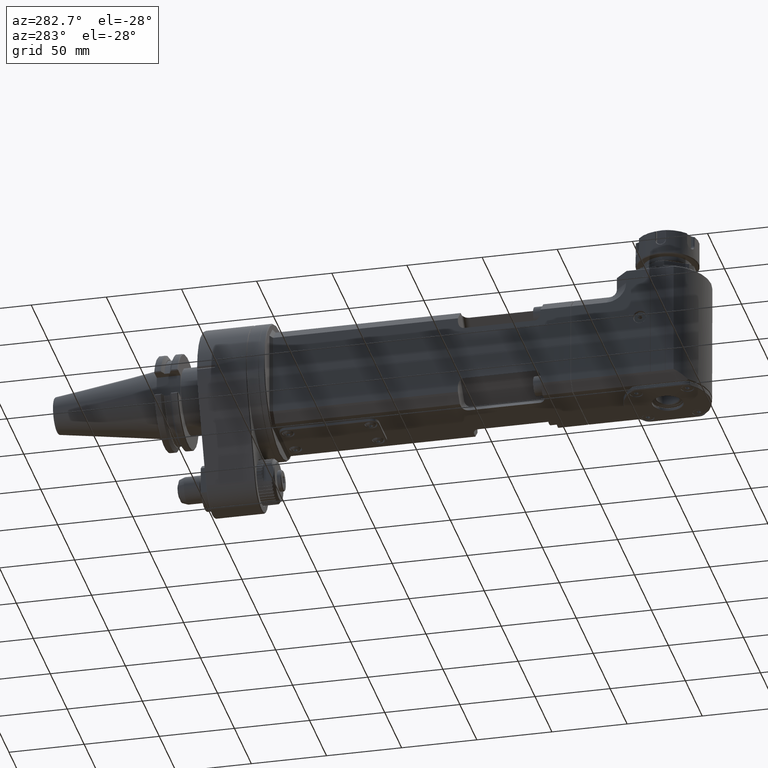
[diagram: clean part render]
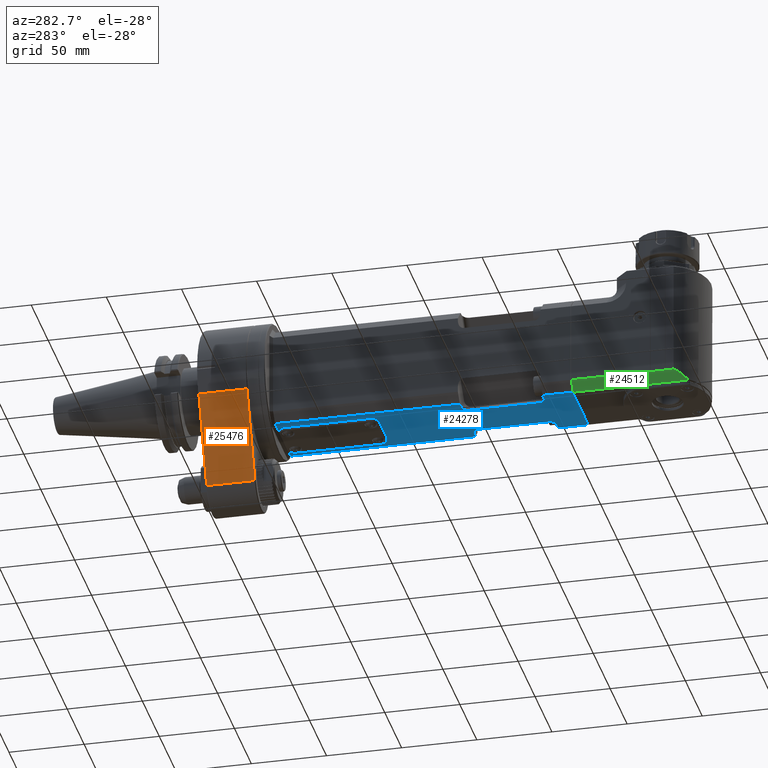
[diagram: same view with three faces highlighted in distinct colors, each labeled with its STEP entity id]
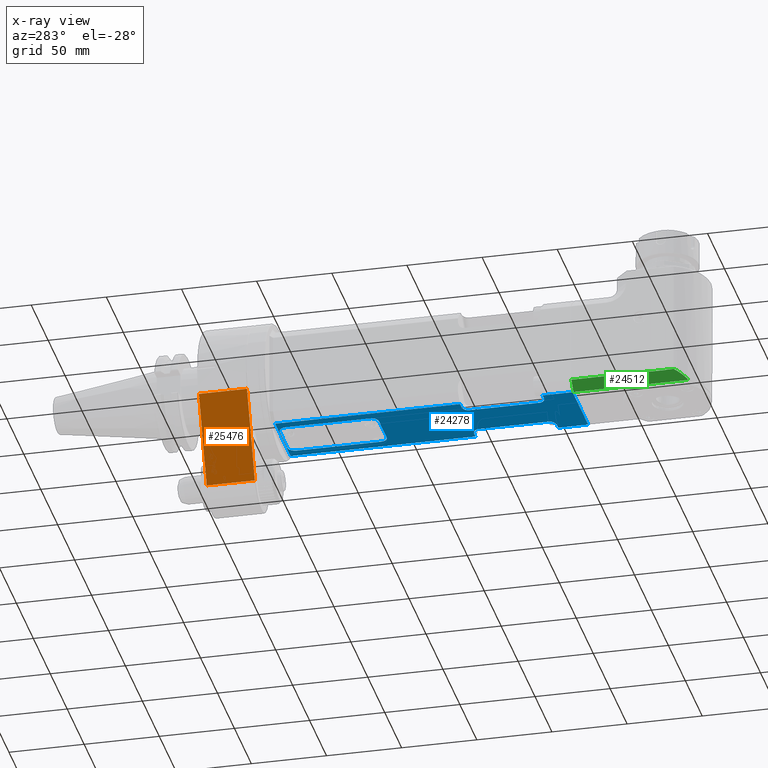
[diagram: x-ray of the same camera — body ghosted, the three highlighted faces saturated]
A machine part, auxiliary view with three faces highlighted in distinct colors.
The next image is the same camera in x-ray (body ghosted, the three faces saturated) — at least one of them is partly hidden behind the body in this view.
Their STEP definitions:

[orange] entity #25476 — the highlighted planar face has unit normal (-0.9231, 0, -0.3846).
#976=PLANE('',#27900);
#3185=FACE_OUTER_BOUND('',#4815,.T.);
#4815=EDGE_LOOP('',(#22831,#22832,#22833,#22834));
#7987=LINE('',#49036,#10020);
#7997=LINE('',#49058,#10030);
#7998=LINE('',#49060,#10031);
#7999=LINE('',#49061,#10032);
#10020=VECTOR('',#34144,10.);
#10030=VECTOR('',#34170,10.);
#10031=VECTOR('',#34173,31.99969563317);
#10032=VECTOR('',#34174,32.00018741808);
#12364=VERTEX_POINT('',#47543);
#12580=VERTEX_POINT('',#49031);
#12581=VERTEX_POINT('',#49035);
#12585=VERTEX_POINT('',#49054);
#16076=EDGE_CURVE('',#12581,#12580,#7987,.T.);
#16088=EDGE_CURVE('',#12364,#12585,#7997,.T.);
#16089=EDGE_CURVE('',#12585,#12581,#7998,.T.);
#16090=EDGE_CURVE('',#12580,#12364,#7999,.T.);
#22831=ORIENTED_EDGE('',*,*,#16088,.T.);
#22832=ORIENTED_EDGE('',*,*,#16089,.T.);
#22833=ORIENTED_EDGE('',*,*,#16076,.T.);
#22834=ORIENTED_EDGE('',*,*,#16090,.T.);
#25476=ADVANCED_FACE('',(#3185),#976,.T.);
#27900=AXIS2_PLACEMENT_3D('',#49059,#34171,#34172);
#34144=DIRECTION('',(-0.384615384615406,3.39139971075705E-14,0.923076923076914));
#34170=DIRECTION('',(0.384615384615406,3.39139971075705E-14,-0.923076923076914));
#34171=DIRECTION('center_axis',(-0.923076923076914,0.,-0.384615384615406));
#34172=DIRECTION('ref_axis',(-0.384615384615406,0.,0.923076923076914));
#34173=DIRECTION('',(-5.231420650501E-13,-1.,-2.184939694437E-13));
#34174=DIRECTION('',(5.357904936583E-13,1.,1.99061822447E-13));
#47543=CARTESIAN_POINT('',(-41.5383202524667,32.5003101427439,-17.3076334733757));
#49031=CARTESIAN_POINT('',(-41.5384616394059,0.500113797660992,-17.3076923845356));
#49035=CARTESIAN_POINT('',(-18.4615386000156,0.500150759076893,-72.6923076780329));
#49036=CARTESIAN_POINT('',(-24.2307692307706,0.500000000001736,-58.8461538461574));
#49054=CARTESIAN_POINT('',(-18.4615384204592,32.499849710546,-72.692307603216));
#49058=CARTESIAN_POINT('',(-24.2307692307709,32.4999999999983,-58.8461538461569));
#49059=CARTESIAN_POINT('Origin',(-18.46153846154,0.,-72.69230769231));
#49060=CARTESIAN_POINT('',(-18.46153848688,32.49985434569,-72.69230763089));
#49061=CARTESIAN_POINT('',(-41.53846152592,0.5001217498938,-17.30769233725));

[blue] entity #24278 — the highlighted planar face has unit normal (-0, 0, -1).
#429=PLANE('',#25902);
#1385=FACE_BOUND('',#3481,.T.);
#1987=FACE_OUTER_BOUND('',#3480,.T.);
#3480=EDGE_LOOP('',(#16800,#16801,#16802,#16803,#16804,#16805,#16806,#16807,
#16808,#16809,#16810,#16811,#16812,#16813,#16814,#16815));
#3481=EDGE_LOOP('',(#16816,#16817,#16818,#16819,#16820,#16821,#16822,#16823));
#5142=ELLIPSE('',#25903,5.65685424949238,4.);
#5143=ELLIPSE('',#25904,5.65685424949238,4.);
#5144=ELLIPSE('',#25905,5.65685424949238,4.);
#5145=ELLIPSE('',#25906,5.65685424949238,4.);
#5319=CIRCLE('',#25907,5.);
#5320=CIRCLE('',#25908,5.);
#5321=CIRCLE('',#25909,5.);
#5322=CIRCLE('',#25910,5.);
#6300=LINE('',#35321,#8333);
#6304=LINE('',#35329,#8337);
#6388=LINE('',#35864,#8421);
#6389=LINE('',#35867,#8422);
#6390=LINE('',#35871,#8423);
#6391=LINE('',#35875,#8424);
#6392=LINE('',#35877,#8425);
#6393=LINE('',#35879,#8426);
#6394=LINE('',#35881,#8427);
#6395=LINE('',#35883,#8428);
#6396=LINE('',#35887,#8429);
#6397=LINE('',#35890,#8430);
#6398=LINE('',#35893,#8431);
#6399=LINE('',#35897,#8432);
#6400=LINE('',#35901,#8433);
#6401=LINE('',#35905,#8434);
#8333=VECTOR('',#28341,46.);
#8337=VECTOR('',#28349,123.);
#8421=VECTOR('',#28565,123.);
#8422=VECTOR('',#28568,3.899494936612);
#8423=VECTOR('',#28571,47.);
#8424=VECTOR('',#28574,3.899494936612);
#8425=VECTOR('',#28575,20.);
#8426=VECTOR('',#28576,46.);
#8427=VECTOR('',#28577,20.);
#8428=VECTOR('',#28578,3.899494936612);
#8429=VECTOR('',#28581,47.);
#8430=VECTOR('',#28584,3.899494936612);
#8431=VECTOR('',#28585,56.);
#8432=VECTOR('',#28588,23.);
#8433=VECTOR('',#28591,56.);
#8434=VECTOR('',#28594,23.);
#10369=VERTEX_POINT('',#35316);
#10370=VERTEX_POINT('',#35320);
#10372=VERTEX_POINT('',#35328);
#10557=VERTEX_POINT('',#35862);
#10558=VERTEX_POINT('',#35866);
#10559=VERTEX_POINT('',#35868);
#10560=VERTEX_POINT('',#35870);
#10561=VERTEX_POINT('',#35872);
#10562=VERTEX_POINT('',#35874);
#10563=VERTEX_POINT('',#35876);
#10564=VERTEX_POINT('',#35878);
#10565=VERTEX_POINT('',#35880);
#10566=VERTEX_POINT('',#35882);
#10567=VERTEX_POINT('',#35884);
#10568=VERTEX_POINT('',#35886);
#10569=VERTEX_POINT('',#35888);
#10570=VERTEX_POINT('',#35891);
#10571=VERTEX_POINT('',#35892);
#10572=VERTEX_POINT('',#35894);
#10573=VERTEX_POINT('',#35896);
#10574=VERTEX_POINT('',#35898);
#10575=VERTEX_POINT('',#35900);
#10576=VERTEX_POINT('',#35902);
#10577=VERTEX_POINT('',#35904);
#12821=EDGE_CURVE('',#10370,#10369,#6300,.T.);
#12825=EDGE_CURVE('',#10372,#10370,#6304,.T.);
#13018=EDGE_CURVE('',#10557,#10369,#6388,.T.);
#13019=EDGE_CURVE('',#10557,#10558,#6389,.T.);
#13020=EDGE_CURVE('',#10558,#10559,#5142,.T.);
#13021=EDGE_CURVE('',#10559,#10560,#6390,.T.);
#13022=EDGE_CURVE('',#10560,#10561,#5143,.T.);
#13023=EDGE_CURVE('',#10562,#10561,#6391,.T.);
#13024=EDGE_CURVE('',#10563,#10562,#6392,.T.);
#13025=EDGE_CURVE('',#10564,#10563,#6393,.T.);
#13026=EDGE_CURVE('',#10564,#10565,#6394,.T.);
#13027=EDGE_CURVE('',#10565,#10566,#6395,.T.);
#13028=EDGE_CURVE('',#10566,#10567,#5144,.T.);
#13029=EDGE_CURVE('',#10568,#10567,#6396,.T.);
#13030=EDGE_CURVE('',#10568,#10569,#5145,.T.);
#13031=EDGE_CURVE('',#10372,#10569,#6397,.T.);
#13032=EDGE_CURVE('',#10570,#10571,#6398,.T.);
#13033=EDGE_CURVE('',#10572,#10571,#5319,.T.);
#13034=EDGE_CURVE('',#10572,#10573,#6399,.T.);
#13035=EDGE_CURVE('',#10574,#10573,#5320,.T.);
#13036=EDGE_CURVE('',#10574,#10575,#6400,.T.);
#13037=EDGE_CURVE('',#10576,#10575,#5321,.T.);
#13038=EDGE_CURVE('',#10576,#10577,#6401,.T.);
#13039=EDGE_CURVE('',#10570,#10577,#5322,.T.);
#16800=ORIENTED_EDGE('',*,*,#12821,.T.);
#16801=ORIENTED_EDGE('',*,*,#13018,.F.);
#16802=ORIENTED_EDGE('',*,*,#13019,.T.);
#16803=ORIENTED_EDGE('',*,*,#13020,.T.);
#16804=ORIENTED_EDGE('',*,*,#13021,.T.);
#16805=ORIENTED_EDGE('',*,*,#13022,.T.);
#16806=ORIENTED_EDGE('',*,*,#13023,.F.);
#16807=ORIENTED_EDGE('',*,*,#13024,.F.);
#16808=ORIENTED_EDGE('',*,*,#13025,.F.);
#16809=ORIENTED_EDGE('',*,*,#13026,.T.);
#16810=ORIENTED_EDGE('',*,*,#13027,.T.);
#16811=ORIENTED_EDGE('',*,*,#13028,.T.);
#16812=ORIENTED_EDGE('',*,*,#13029,.F.);
#16813=ORIENTED_EDGE('',*,*,#13030,.T.);
#16814=ORIENTED_EDGE('',*,*,#13031,.F.);
#16815=ORIENTED_EDGE('',*,*,#12825,.T.);
#16816=ORIENTED_EDGE('',*,*,#13032,.T.);
#16817=ORIENTED_EDGE('',*,*,#13033,.F.);
#16818=ORIENTED_EDGE('',*,*,#13034,.T.);
#16819=ORIENTED_EDGE('',*,*,#13035,.F.);
#16820=ORIENTED_EDGE('',*,*,#13036,.T.);
#16821=ORIENTED_EDGE('',*,*,#13037,.F.);
#16822=ORIENTED_EDGE('',*,*,#13038,.T.);
#16823=ORIENTED_EDGE('',*,*,#13039,.F.);
#24278=ADVANCED_FACE('',(#1987,#1385),#429,.T.);
#25902=AXIS2_PLACEMENT_3D('',#35865,#28566,#28567);
#25903=AXIS2_PLACEMENT_3D('',#35869,#28569,#28570);
#25904=AXIS2_PLACEMENT_3D('',#35873,#28572,#28573);
#25905=AXIS2_PLACEMENT_3D('',#35885,#28579,#28580);
#25906=AXIS2_PLACEMENT_3D('',#35889,#28582,#28583);
#25907=AXIS2_PLACEMENT_3D('',#35895,#28586,#28587);
#25908=AXIS2_PLACEMENT_3D('',#35899,#28589,#28590);
#25909=AXIS2_PLACEMENT_3D('',#35903,#28592,#28593);
#25910=AXIS2_PLACEMENT_3D('',#35906,#28595,#28596);
#28341=DIRECTION('',(1.,0.,0.));
#28349=DIRECTION('',(0.,1.,0.));
#28565=DIRECTION('',(0.,1.,0.));
#28566=DIRECTION('center_axis',(0.,0.,-1.));
#28567=DIRECTION('ref_axis',(1.,0.,0.));
#28568=DIRECTION('',(-1.,0.,0.));
#28569=DIRECTION('center_axis',(0.,0.,1.));
#28570=DIRECTION('ref_axis',(-1.,0.,0.));
#28571=DIRECTION('',(0.,-1.,0.));
#28572=DIRECTION('center_axis',(0.,0.,1.));
#28573=DIRECTION('ref_axis',(-1.,0.,0.));
#28574=DIRECTION('',(-1.,0.,0.));
#28575=DIRECTION('',(0.,1.,0.));
#28576=DIRECTION('',(1.,0.,0.));
#28577=DIRECTION('',(0.,1.,0.));
#28578=DIRECTION('',(1.,0.,0.));
#28579=DIRECTION('center_axis',(0.,0.,1.));
#28580=DIRECTION('ref_axis',(1.,0.,0.));
#28581=DIRECTION('',(0.,-1.,0.));
#28582=DIRECTION('center_axis',(0.,0.,1.));
#28583=DIRECTION('ref_axis',(1.,0.,0.));
#28584=DIRECTION('',(1.,-1.457712339286E-14,0.));
#28585=DIRECTION('',(0.,-1.,0.));
#28586=DIRECTION('center_axis',(0.,0.,-1.));
#28587=DIRECTION('ref_axis',(0.,-1.,0.));
#28588=DIRECTION('',(1.,0.,0.));
#28589=DIRECTION('center_axis',(0.,0.,-1.));
#28590=DIRECTION('ref_axis',(1.,-1.477928890381E-13,0.));
#28591=DIRECTION('',(0.,1.,0.));
#28592=DIRECTION('center_axis',(0.,0.,-1.));
#28593=DIRECTION('ref_axis',(0.,1.,0.));
#28594=DIRECTION('',(-1.,0.,0.));
#28595=DIRECTION('center_axis',(0.,0.,-1.));
#28596=DIRECTION('ref_axis',(-1.,0.,0.));
#35316=CARTESIAN_POINT('',(23.,-14.,-35.));
#35320=CARTESIAN_POINT('',(-23.,-14.,-35.));
#35321=CARTESIAN_POINT('',(-23.,-14.,-35.));
#35328=CARTESIAN_POINT('',(-23.,-137.,-35.));
#35329=CARTESIAN_POINT('',(-23.,-137.,-35.));
#35862=CARTESIAN_POINT('',(23.,-137.,-35.));
#35864=CARTESIAN_POINT('',(23.,-137.,-35.));
#35865=CARTESIAN_POINT('Origin',(-29.,-212.,-35.));
#35866=CARTESIAN_POINT('',(19.10050506339,-137.,-35.));
#35867=CARTESIAN_POINT('',(23.,-137.,-35.));
#35868=CARTESIAN_POINT('',(13.4436508139,-141.,-35.));
#35869=CARTESIAN_POINT('Origin',(19.1005050634,-141.,-35.));
#35870=CARTESIAN_POINT('',(13.4436508139,-188.,-35.));
#35871=CARTESIAN_POINT('',(13.4436508139,-141.,-35.));
#35872=CARTESIAN_POINT('',(19.10050506339,-192.,-35.));
#35873=CARTESIAN_POINT('Origin',(19.1005050634,-188.,-35.));
#35874=CARTESIAN_POINT('',(23.,-192.,-35.));
#35875=CARTESIAN_POINT('',(23.,-192.,-35.));
#35876=CARTESIAN_POINT('',(23.,-212.,-35.));
#35877=CARTESIAN_POINT('',(23.,-212.,-35.));
#35878=CARTESIAN_POINT('',(-23.,-212.,-35.));
#35879=CARTESIAN_POINT('',(-23.,-212.,-35.));
#35880=CARTESIAN_POINT('',(-23.,-192.,-35.));
#35881=CARTESIAN_POINT('',(-23.,-212.,-35.));
#35882=CARTESIAN_POINT('',(-19.10050506339,-192.,-35.));
#35883=CARTESIAN_POINT('',(-23.,-192.,-35.));
#35884=CARTESIAN_POINT('',(-13.4436508139,-188.,-35.));
#35885=CARTESIAN_POINT('Origin',(-19.1005050634,-188.,-35.));
#35886=CARTESIAN_POINT('',(-13.4436508139,-141.,-35.));
#35887=CARTESIAN_POINT('',(-13.4436508139,-141.,-35.));
#35888=CARTESIAN_POINT('',(-19.10050506339,-137.,-35.));
#35889=CARTESIAN_POINT('Origin',(-19.1005050634,-141.,-35.));
#35890=CARTESIAN_POINT('',(-23.,-137.,-35.));
#35891=CARTESIAN_POINT('',(-16.5,-19.5,-35.));
#35892=CARTESIAN_POINT('',(-16.5,-75.5,-35.));
#35893=CARTESIAN_POINT('',(-16.5,-19.5,-35.));
#35894=CARTESIAN_POINT('',(-11.5,-80.5,-35.));
#35895=CARTESIAN_POINT('Origin',(-11.5,-75.5,-35.));
#35896=CARTESIAN_POINT('',(11.5,-80.5,-35.));
#35897=CARTESIAN_POINT('',(-11.5,-80.5,-35.));
#35898=CARTESIAN_POINT('',(16.5,-75.5,-35.));
#35899=CARTESIAN_POINT('Origin',(11.5,-75.5,-35.));
#35900=CARTESIAN_POINT('',(16.5,-19.5,-35.));
#35901=CARTESIAN_POINT('',(16.5,-75.5,-35.));
#35902=CARTESIAN_POINT('',(11.5,-14.5,-35.));
#35903=CARTESIAN_POINT('Origin',(11.5,-19.5,-35.));
#35904=CARTESIAN_POINT('',(-11.5,-14.5,-35.));
#35905=CARTESIAN_POINT('',(11.5,-14.5,-35.));
#35906=CARTESIAN_POINT('Origin',(-11.5,-19.5,-35.));

[green] entity #24512 — the highlighted planar face has unit normal (-0.7071, 0, -0.7071).
#329=(
BOUNDED_CURVE()
B_SPLINE_CURVE(2,(#38311,#38312,#38313),.UNSPECIFIED.,.F.,.F.)
B_SPLINE_CURVE_WITH_KNOTS((3,3),(0.155284023209542,0.231852481080355),
 .UNSPECIFIED.)
CURVE()
GEOMETRIC_REPRESENTATION_ITEM()
RATIONAL_B_SPLINE_CURVE((1.,1.,1.))
REPRESENTATION_ITEM('')
);
#553=PLANE('',#26335);
#2221=FACE_OUTER_BOUND('',#3747,.T.);
#3747=EDGE_LOOP('',(#17936,#17937,#17938,#17939,#17940,#17941,#17942,#17943,
#17944,#17945,#17946));
#5149=ELLIPSE('',#26330,45.254833995939,32.);
#6519=LINE('',#36602,#8552);
#6543=LINE('',#36668,#8576);
#6709=LINE('',#38309,#8742);
#6710=LINE('',#38315,#8743);
#6711=LINE('',#38317,#8744);
#6712=LINE('',#38319,#8745);
#6713=LINE('',#38321,#8746);
#6714=LINE('',#38323,#8747);
#6715=LINE('',#38324,#8748);
#8552=VECTOR('',#28944,8.48528137423843);
#8576=VECTOR('',#28998,10.);
#8742=VECTOR('',#29752,5.327749258469);
#8743=VECTOR('',#29755,0.346410161513784);
#8744=VECTOR('',#29756,0.173205080756902);
#8745=VECTOR('',#29757,9.8);
#8746=VECTOR('',#29758,0.173205080756892);
#8747=VECTOR('',#29759,0.346410161513805);
#8748=VECTOR('',#29760,52.3);
#10679=VERTEX_POINT('',#36597);
#10680=VERTEX_POINT('',#36601);
#10704=VERTEX_POINT('',#36666);
#10916=VERTEX_POINT('',#38278);
#10917=VERTEX_POINT('',#38280);
#10925=VERTEX_POINT('',#38307);
#10926=VERTEX_POINT('',#38314);
#10927=VERTEX_POINT('',#38316);
#10928=VERTEX_POINT('',#38318);
#10929=VERTEX_POINT('',#38320);
#10930=VERTEX_POINT('',#38322);
#13213=EDGE_CURVE('',#10679,#10680,#6519,.T.);
#13245=EDGE_CURVE('',#10704,#10679,#6543,.T.);
#13584=EDGE_CURVE('',#10917,#10916,#5149,.T.);
#13596=EDGE_CURVE('',#10925,#10916,#6709,.T.);
#13597=EDGE_CURVE('',#10704,#10917,#329,.T.);
#13598=EDGE_CURVE('',#10925,#10926,#6710,.T.);
#13599=EDGE_CURVE('',#10926,#10927,#6711,.T.);
#13600=EDGE_CURVE('',#10928,#10927,#6712,.T.);
#13601=EDGE_CURVE('',#10928,#10929,#6713,.T.);
#13602=EDGE_CURVE('',#10929,#10930,#6714,.T.);
#13603=EDGE_CURVE('',#10680,#10930,#6715,.T.);
#17936=ORIENTED_EDGE('',*,*,#13213,.F.);
#17937=ORIENTED_EDGE('',*,*,#13245,.F.);
#17938=ORIENTED_EDGE('',*,*,#13597,.T.);
#17939=ORIENTED_EDGE('',*,*,#13584,.T.);
#17940=ORIENTED_EDGE('',*,*,#13596,.F.);
#17941=ORIENTED_EDGE('',*,*,#13598,.T.);
#17942=ORIENTED_EDGE('',*,*,#13599,.T.);
#17943=ORIENTED_EDGE('',*,*,#13600,.F.);
#17944=ORIENTED_EDGE('',*,*,#13601,.T.);
#17945=ORIENTED_EDGE('',*,*,#13602,.T.);
#17946=ORIENTED_EDGE('',*,*,#13603,.F.);
#24512=ADVANCED_FACE('',(#2221),#553,.T.);
#26330=AXIS2_PLACEMENT_3D('',#38281,#29733,#29734);
#26335=AXIS2_PLACEMENT_3D('',#38310,#29753,#29754);
#28944=DIRECTION('',(-0.707106781186548,0.,0.707106781186548));
#28998=DIRECTION('',(0.,1.,0.));
#29733=DIRECTION('center_axis',(-0.707106781186548,0.,-0.707106781186548));
#29734=DIRECTION('ref_axis',(-0.707106781186547,0.,0.707106781186547));
#29752=DIRECTION('',(0.,-1.,0.));
#29753=DIRECTION('center_axis',(-0.707106781186548,0.,-0.707106781186548));
#29754=DIRECTION('ref_axis',(0.707106781186548,0.,-0.707106781186548));
#29755=DIRECTION('',(0.577350269189626,0.577350269189626,-0.577350269189626));
#29756=DIRECTION('',(-0.577350269189592,0.577350269189692,0.577350269189592));
#29757=DIRECTION('',(0.,-1.,0.));
#29758=DIRECTION('',(0.577350269189626,0.577350269189526,-0.577350269189726));
#29759=DIRECTION('',(-0.577350269189592,0.577350269189692,0.577350269189592));
#29760=DIRECTION('',(0.,-1.,0.));
#36597=CARTESIAN_POINT('',(-23.,-212.5,-35.));
#36601=CARTESIAN_POINT('',(-29.,-212.5,-29.));
#36602=CARTESIAN_POINT('',(-23.,-212.5,-35.));
#36666=CARTESIAN_POINT('',(-23.0000000003755,-288.52324324908,-35.));
#36668=CARTESIAN_POINT('',(-23.,-268.7,-35.));
#38278=CARTESIAN_POINT('',(-29.,-280.5277492585,-29.));
#38280=CARTESIAN_POINT('',(-23.5,-288.719806629,-34.5));
#38281=CARTESIAN_POINT('Origin',(0.,-267.,-58.));
#38307=CARTESIAN_POINT('',(-29.,-275.2,-29.));
#38309=CARTESIAN_POINT('',(-29.,-275.2,-29.));
#38310=CARTESIAN_POINT('Origin',(-26.,-238.4,-32.));
#38311=CARTESIAN_POINT('Ctrl Pts',(-23.0000000000001,-288.523243250031,
-34.9999999999999));
#38312=CARTESIAN_POINT('Ctrl Pts',(-23.2488636128865,-288.621524939503,
-34.7511363871135));
#38313=CARTESIAN_POINT('Ctrl Pts',(-23.5000000000048,-288.719806628975,
-34.4999999999952));
#38314=CARTESIAN_POINT('',(-28.8,-275.,-29.2));
#38315=CARTESIAN_POINT('',(-29.,-275.2,-29.));
#38316=CARTESIAN_POINT('',(-28.9,-274.9,-29.1));
#38317=CARTESIAN_POINT('',(-28.8,-275.,-29.2));
#38318=CARTESIAN_POINT('',(-28.9,-265.1,-29.1));
#38319=CARTESIAN_POINT('',(-28.9,-265.1,-29.1));
#38320=CARTESIAN_POINT('',(-28.8,-265.,-29.2));
#38321=CARTESIAN_POINT('',(-28.9,-265.1,-29.1));
#38322=CARTESIAN_POINT('',(-29.,-264.8,-29.));
#38323=CARTESIAN_POINT('',(-28.8,-265.,-29.2));
#38324=CARTESIAN_POINT('',(-29.,-212.5,-29.));